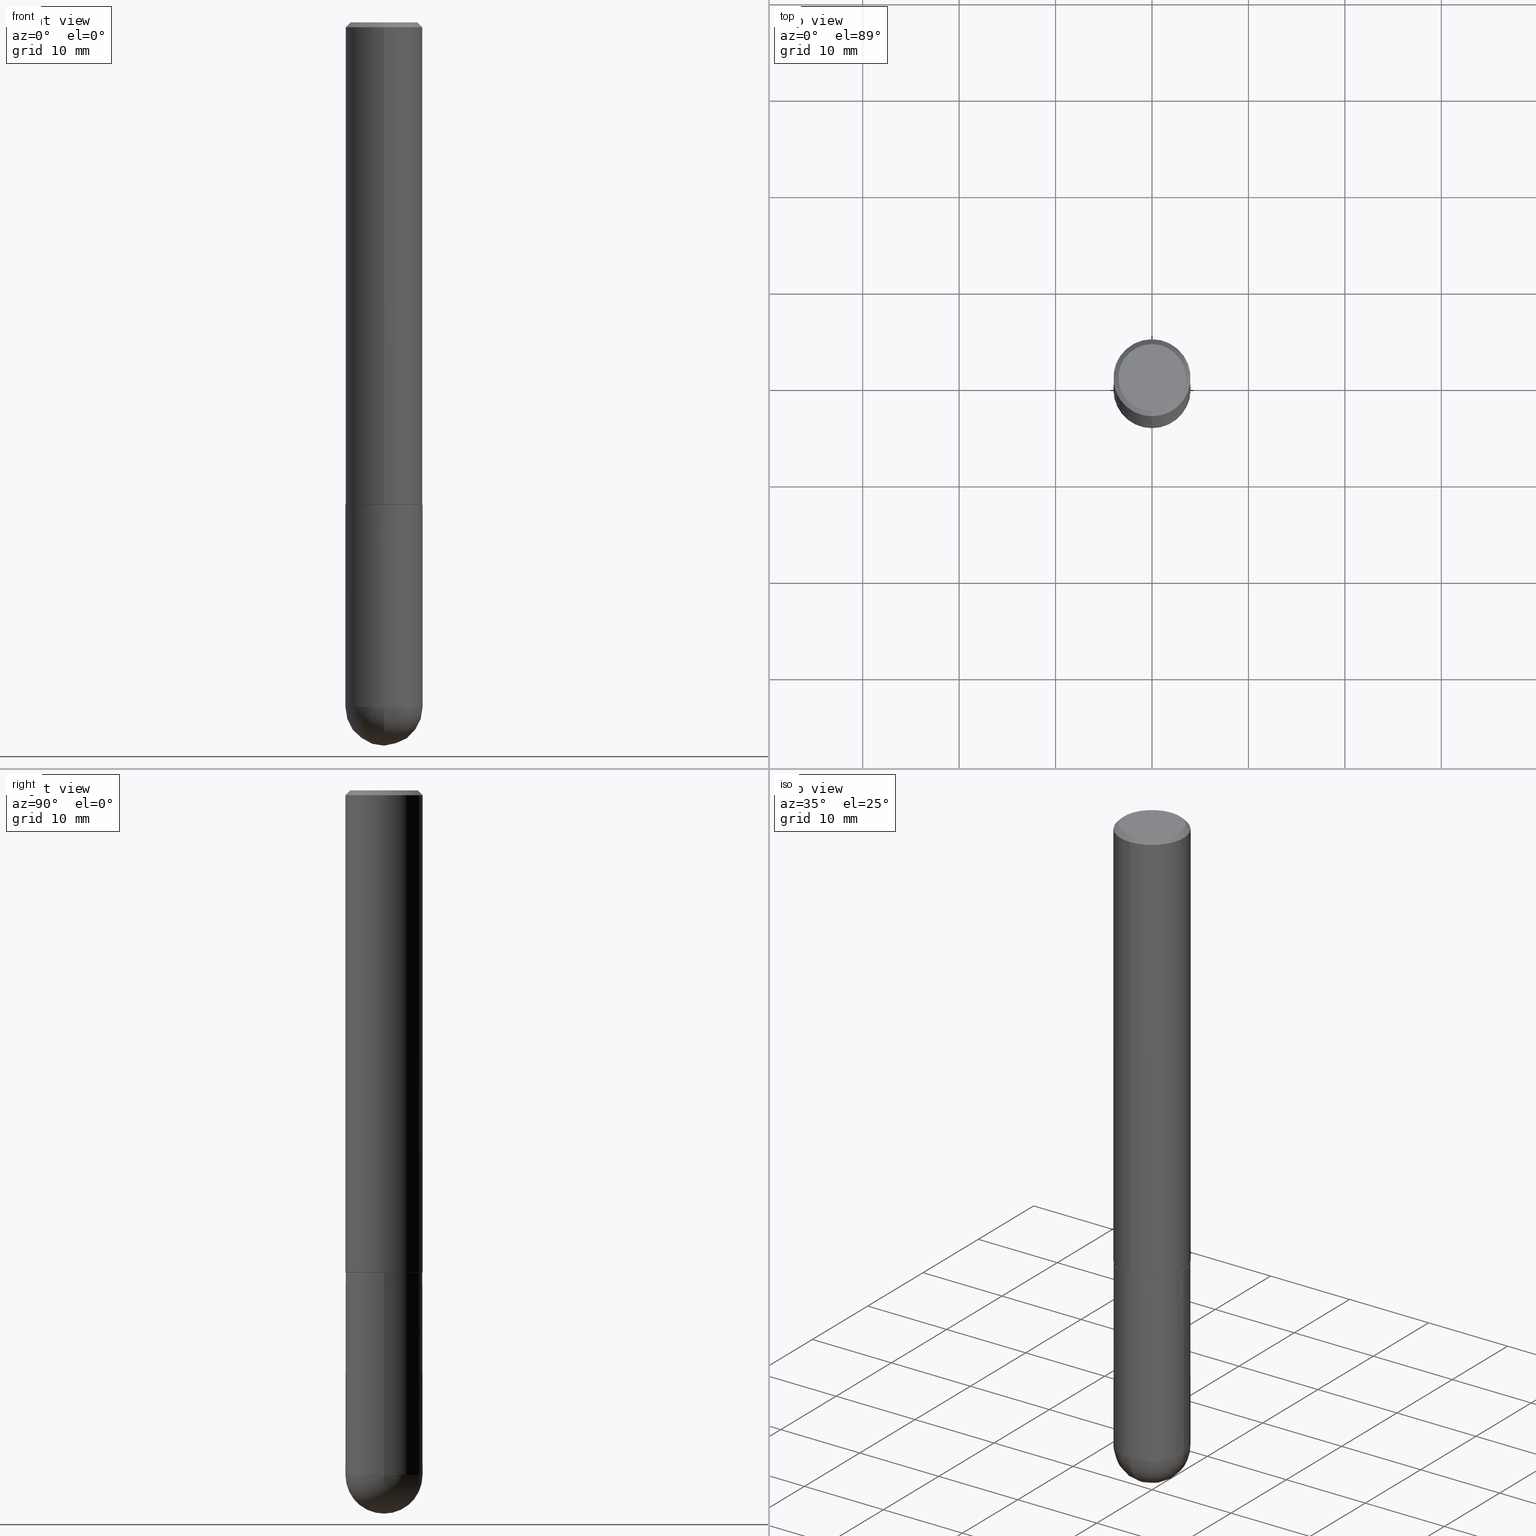
[diagram: canonical four-view strip — front | top / right | iso, engineering-drawing reading convention]
A machine part, canonical four-view strip (front | top / right | iso — engineering-drawing reading convention). The complete STEP part file that produces these views, byte-faithful:
ISO-10303-21;
HEADER;
FILE_DESCRIPTION (( 'STEP AP203' ),
    '1' );
FILE_NAME ('43316.STEP',
    '2024-04-10T11:43:01',
    ( '' ),
    ( '' ),
    'SwSTEP 2.0',
    'SolidWorks 2023',
    '' );
FILE_SCHEMA (( 'CONFIG_CONTROL_DESIGN' ));
ENDSEC;

DATA;
#1 = DIRECTION ( 'NONE',  ( 1.000000000000000000, -6.982962677686268288E-15, 0.000000000000000000 ) ) ;
#2 = EDGE_CURVE ( 'NONE', #313, #119, #248, .T. ) ;
#3 = ORIENTED_EDGE ( 'NONE', *, *, #396, .T. ) ;
#4 = CARTESIAN_POINT ( 'NONE',  ( 0.000000000000000000, 0.000000000000000000, 0.000000000000000000 ) ) ;
#5 = DIRECTION ( 'NONE',  ( -2.452606242276133797E-29, 3.481260124123203654E-15, 1.000000000000000000 ) ) ;
#6 = CC_DESIGN_SECURITY_CLASSIFICATION ( #137, ( #92 ) ) ;
#7 = APPLICATION_PROTOCOL_DEFINITION ( 'international standard', 'config_control_design', 1994, #393 ) ;
#8 = LINE ( 'NONE', #175, #260 ) ;
#9 = EDGE_CURVE ( 'NONE', #28, #375, #55, .T. ) ;
#10 = CARTESIAN_POINT ( 'NONE',  ( 6.835818953929311707E-29, -9.759737786468243605E-15, -2.795299999999999674 ) ) ;
#11 = DIRECTION ( 'NONE',  ( 1.000000000000000000, -6.982962677686265922E-15, 4.876176775795935232E-29 ) ) ;
#12 = DIRECTION ( 'NONE',  ( -6.982962677686265922E-15, -1.000000000000000000, 3.469013325287948955E-15 ) ) ;
#13 = LINE ( 'NONE', #76, #281 ) ;
#14 = CIRCLE ( 'NONE', #144, 0.1575000000000000011 ) ;
#15 =( GEOMETRIC_REPRESENTATION_CONTEXT ( 3 ) GLOBAL_UNCERTAINTY_ASSIGNED_CONTEXT ( ( #180 ) ) GLOBAL_UNIT_ASSIGNED_CONTEXT ( ( #169, #290, #166 ) ) REPRESENTATION_CONTEXT ( 'NONE', 'WORKASPACE' ) );
#16 = LINE ( 'NONE', #305, #277 ) ;
#17 = PERSON_AND_ORGANIZATION ( #366, #145 ) ;
#18 = FACE_OUTER_BOUND ( 'NONE', #303, .T. ) ;
#19 = APPROVAL_ROLE ( '' ) ;
#20 = CARTESIAN_POINT ( 'NONE',  ( 4.905212484552274391E-31, -6.962520248246417464E-17, -0.02000000000000003164 ) ) ;
#21 = DESIGN_CONTEXT ( 'detailed design', #61, 'design' ) ;
#22 = EDGE_LOOP ( 'NONE', ( #3, #409, #192, #36 ) ) ;
#23 = CIRCLE ( 'NONE', #105, 0.1575000000000000011 ) ;
#24 = EDGE_CURVE ( 'NONE', #375, #65, #220, .T. ) ;
#25 = ORIENTED_EDGE ( 'NONE', *, *, #142, .F. ) ;
#26 = COORDINATED_UNIVERSAL_TIME_OFFSET ( 5, 0, .BEHIND. ) ;
#27 = EDGE_LOOP ( 'NONE', ( #188, #242, #124, #85 ) ) ;
#28 = VERTEX_POINT ( 'NONE', #291 ) ;
#29 = VECTOR ( 'NONE', #106, 39.37007874015748143 ) ;
#30 = AXIS2_PLACEMENT_3D ( 'NONE', #4, #154, #78 ) ;
#31 = ORIENTED_EDGE ( 'NONE', *, *, #388, .F. ) ;
#32 = APPROVAL_STATUS ( 'not_yet_approved' ) ;
#33 = EDGE_CURVE ( 'NONE', #313, #125, #174, .T. ) ;
#34 = CC_DESIGN_PERSON_AND_ORGANIZATION_ASSIGNMENT ( #250, #98, ( #92 ) ) ;
#35 = AXIS2_PLACEMENT_3D ( 'NONE', #208, #45, #243 ) ;
#36 = ORIENTED_EDGE ( 'NONE', *, *, #179, .F. ) ;
#37 = FACE_OUTER_BOUND ( 'NONE', #254, .T. ) ;
#38 = CARTESIAN_POINT ( 'NONE',  ( 4.905212484552274391E-31, -6.962520248246417464E-17, -0.02000000000000003164 ) ) ;
#39 = DIRECTION ( 'NONE',  ( 2.438088387897960049E-29, -3.491481338843145188E-15, -1.000000000000000000 ) ) ;
#40 = DIRECTION ( 'NONE',  ( 5.024295867787803643E-15, 0.7071067811865135999, 0.7071067811865812125 ) ) ;
#41 = CLOSED_SHELL ( 'NONE', ( #371, #202, #62, #77, #228, #309, #349, #189 ) ) ;
#42 = DIRECTION ( 'NONE',  ( -6.982962677686267499E-15, -1.000000000000000000, 3.491179544618867914E-15 ) ) ;
#43 = FACE_OUTER_BOUND ( 'NONE', #252, .T. ) ;
#44 = DIRECTION ( 'NONE',  ( -2.452606242276134078E-29, 3.481260124123204048E-15, 1.000000000000000000 ) ) ;
#45 = DIRECTION ( 'NONE',  ( 2.452606242276133797E-29, -3.481260124123203654E-15, -1.000000000000000000 ) ) ;
#46 = CARTESIAN_POINT ( 'NONE',  ( 9.601573681818604894E-16, 0.1374999999999998723, -4.196168007175302652E-16 ) ) ;
#47 = CIRCLE ( 'NONE', #152, 0.1575000000000000011 ) ;
#48 = CARTESIAN_POINT ( 'NONE',  ( -2.896845160306655403E-45, 4.111818427476478730E-31, 1.181129326988194735E-16 ) ) ;
#49 = CARTESIAN_POINT ( 'NONE',  ( -0.1575000000000000011, 1.119104808822157801E-15, -7.747322767151475583E-30 ) ) ;
#50 = ORIENTED_EDGE ( 'NONE', *, *, #315, .T. ) ;
#51 = AXIS2_PLACEMENT_3D ( 'NONE', #79, #121, #275 ) ;
#52 = ORIENTED_EDGE ( 'NONE', *, *, #101, .T. ) ;
#53 = DIRECTION ( 'NONE',  ( 1.000000000000000000, -6.982962677686265922E-15, 4.883557194083112340E-29 ) ) ;
#54 = APPROVAL_ROLE ( '' ) ;
#55 = LINE ( 'NONE', #330, #29 ) ;
#56 = SECURITY_CLASSIFICATION_LEVEL ( 'unclassified' ) ;
#57 = EDGE_CURVE ( 'NONE', #182, #65, #8, .T. ) ;
#58 = CONICAL_SURFACE ( 'NONE', #35, 0.1574999999999999456, 0.7853981633974469467 ) ;
#59 = AXIS2_PLACEMENT_3D ( 'NONE', #104, #357, #11 ) ;
#60 = COORDINATED_UNIVERSAL_TIME_OFFSET ( 5, 0, .BEHIND. ) ;
#61 = APPLICATION_CONTEXT ( 'configuration controlled 3d designs of mechanical parts and assemblies' ) ;
#62 = ADVANCED_FACE ( 'NONE', ( #178 ), #160, .T. ) ;
#63 = CARTESIAN_POINT ( 'NONE',  ( 4.827955387920569844E-29, -6.852860554336525962E-15, -1.968500000000000139 ) ) ;
#64 = AXIS2_PLACEMENT_3D ( 'NONE', #351, #138, #1 ) ;
#65 = VERTEX_POINT ( 'NONE', #75 ) ;
#66 = CC_DESIGN_APPROVAL ( #379, ( #94 ) ) ;
#67 = FACE_OUTER_BOUND ( 'NONE', #27, .T. ) ;
#68 = DIRECTION ( 'NONE',  ( -6.982962677686267499E-15, -1.000000000000000000, 3.491179544618867914E-15 ) ) ;
#69 = DIRECTION ( 'NONE',  ( -2.445468806185136597E-29, 3.491481338843145583E-15, 1.000000000000000000 ) ) ;
#70 = DIRECTION ( 'NONE',  ( -2.452606242276133237E-29, 3.481260124123204048E-15, 1.000000000000000000 ) ) ;
#71 = PLANE ( 'NONE',  #318 ) ;
#72 = AXIS2_PLACEMENT_3D ( 'NONE', #276, #213, #249 ) ;
#73 = LOCAL_TIME ( 7, 43, 1.000000000000000000, #60 ) ;
#74 = DIRECTION ( 'NONE',  ( -2.452606242276134078E-29, 3.481260124123204048E-15, 1.000000000000000000 ) ) ;
#75 = CARTESIAN_POINT ( 'NONE',  ( 1.099816621735586889E-15, 0.1574999999999998901, -0.02000000000000057634 ) ) ;
#76 = CARTESIAN_POINT ( 'NONE',  ( 1.111999381464604519E-15, 0.1564999999999930891, -1.968500000000000583 ) ) ;
#77 = ADVANCED_FACE ( 'NONE', ( #67 ), #58, .T. ) ;
#78 = DIRECTION ( 'NONE',  ( 1.000000000000000000, 0.000000000000000000, 0.000000000000000000 ) ) ;
#79 = CARTESIAN_POINT ( 'NONE',  ( 0.000000000000000000, 0.000000000000000000, 0.000000000000000000 ) ) ;
#80 = AXIS2_PLACEMENT_3D ( 'NONE', #398, #5, #12 ) ;
#81 = CC_DESIGN_DATE_AND_TIME_ASSIGNMENT ( #255, #383, ( #94 ) ) ;
#82 = ORIENTED_EDGE ( 'NONE', *, *, #360, .T. ) ;
#83 = AXIS2_PLACEMENT_3D ( 'NONE', #328, #197, #68 ) ;
#84 = DIRECTION ( 'NONE',  ( -6.982962677686267499E-15, -1.000000000000000000, 3.491179544618867914E-15 ) ) ;
#85 = ORIENTED_EDGE ( 'NONE', *, *, #268, .T. ) ;
#86 = COORDINATED_UNIVERSAL_TIME_OFFSET ( 5, 0, .BEHIND. ) ;
#87 = CYLINDRICAL_SURFACE ( 'NONE', #72, 0.1575000000000000844 ) ;
#88 = ORIENTED_EDGE ( 'NONE', *, *, #33, .T. ) ;
#89 = VERTEX_POINT ( 'NONE', #300 ) ;
#90 = PERSON_AND_ORGANIZATION ( #366, #145 ) ;
#91 = AXIS2_PLACEMENT_3D ( 'NONE', #48, #218, #335 ) ;
#92 = PRODUCT_DEFINITION_FORMATION_WITH_SPECIFIED_SOURCE ( 'ANY', '', #103, .NOT_KNOWN. ) ;
#93 = VERTEX_POINT ( 'NONE', #329 ) ;
#94 = PRODUCT_DEFINITION ( 'UNKNOWN', '', #92, #21 ) ;
#95 = VERTEX_POINT ( 'NONE', #148 ) ;
#96 = DATE_AND_TIME ( #381, #327 ) ;
#97 = EDGE_LOOP ( 'NONE', ( #167, #258, #134, #31 ) ) ;
#98 = PERSON_AND_ORGANIZATION_ROLE ( 'design_supplier' ) ;
#99 = MANIFOLD_SOLID_BREP ( 'Body-Move/Copy2[2]', #41 ) ;
#100 = VECTOR ( 'NONE', #74, 39.37007874015748143 ) ;
#101 = EDGE_CURVE ( 'NONE', #182, #89, #359, .T. ) ;
#102 = LINE ( 'NONE', #299, #282 ) ;
#103 = PRODUCT ( '43316', '43316', '', ( #216 ) ) ;
#104 = CARTESIAN_POINT ( 'NONE',  ( 0.000000000000000000, 0.000000000000000000, 0.000000000000000000 ) ) ;
#105 = AXIS2_PLACEMENT_3D ( 'NONE', #151, #403, #150 ) ;
#106 = DIRECTION ( 'NONE',  ( -4.851104656540957175E-15, -0.7071067811865490160, -0.7071067811865460184 ) ) ;
#107 = APPROVAL_PERSON_ORGANIZATION ( #307, #379, #19 ) ;
#108 = FACE_OUTER_BOUND ( 'NONE', #22, .T. ) ;
#109 = DIRECTION ( 'NONE',  ( -4.937700262164294818E-15, -0.7071067811865088260, 0.7071067811865862085 ) ) ;
#110 = DIRECTION ( 'NONE',  ( -2.452606242276133797E-29, 3.481260124123203654E-15, 1.000000000000000000 ) ) ;
#111 = DIRECTION ( 'NONE',  ( -2.452606242276133797E-29, 3.481260124123203654E-15, 1.000000000000000000 ) ) ;
#112 = CYLINDRICAL_SURFACE ( 'NONE', #126, 0.1575000000000000844 ) ;
#113 = CIRCLE ( 'NONE', #165, 0.1564999999999999447 ) ;
#114 = EDGE_CURVE ( 'NONE', #89, #182, #368, .T. ) ;
#115 = DIRECTION ( 'NONE',  ( -1.000000000000000000, 7.105427357601001070E-15, -4.926315508542082329E-29 ) ) ;
#116 = APPROVAL_STATUS ( 'not_yet_approved' ) ;
#117 = DIRECTION ( 'NONE',  ( -2.452606242276133797E-29, 3.481260124123203654E-15, 1.000000000000000000 ) ) ;
#118 = CYLINDRICAL_SURFACE ( 'NONE', #51, 0.1575000000000000011 ) ;
#119 = VERTEX_POINT ( 'NONE', #201 ) ;
#120 = DIRECTION ( 'NONE',  ( -2.445468806185136597E-29, 3.491481338843145583E-15, 1.000000000000000000 ) ) ;
#121 = DIRECTION ( 'NONE',  ( -2.445468806185136597E-29, 3.491481338843145583E-15, 1.000000000000000000 ) ) ;
#122 = CC_DESIGN_PERSON_AND_ORGANIZATION_ASSIGNMENT ( #404, #347, ( #92 ) ) ;
#123 = DATE_TIME_ROLE ( 'classification_date' ) ;
#124 = ORIENTED_EDGE ( 'NONE', *, *, #376, .T. ) ;
#125 = VERTEX_POINT ( 'NONE', #200 ) ;
#126 = AXIS2_PLACEMENT_3D ( 'NONE', #395, #111, #358 ) ;
#127 = ADVANCED_FACE ( 'NONE', ( #301 ), #136, .T. ) ;
#128 = ORIENTED_EDGE ( 'NONE', *, *, #302, .F. ) ;
#129 = ORIENTED_EDGE ( 'NONE', *, *, #199, .F. ) ;
#130 = CIRCLE ( 'NONE', #187, 0.1574999999999999456 ) ;
#131 = CONICAL_SURFACE ( 'NONE', #215, 0.1564999999999999447, 0.7853981633973970977 ) ;
#132 = LINE ( 'NONE', #319, #100 ) ;
#133 = CARTESIAN_POINT ( 'NONE',  ( 4.813905344975440714E-29, -6.872981015512730918E-15, -1.968499999999999694 ) ) ;
#134 = ORIENTED_EDGE ( 'NONE', *, *, #24, .F. ) ;
#135 = CARTESIAN_POINT ( 'NONE',  ( -2.896845160306655403E-45, 4.111818427476478730E-31, 1.181129326988194735E-16 ) ) ;
#136 = SPHERICAL_SURFACE ( 'NONE', #292, 0.1575000000000003064 ) ;
#137 = SECURITY_CLASSIFICATION ( '', '', #56 ) ;
#138 = DIRECTION ( 'NONE',  ( -2.445468806185136597E-29, 3.491481338843145583E-15, 1.000000000000000000 ) ) ;
#139 = CARTESIAN_POINT ( 'NONE',  ( 4.905212484552274391E-31, -6.962520248246417464E-17, -0.02000000000000003164 ) ) ;
#140 = DIRECTION ( 'NONE',  ( -2.445468806185136597E-29, 3.491481338843145583E-15, 1.000000000000000000 ) ) ;
#141 = PLANE ( 'NONE',  #390 ) ;
#142 = EDGE_CURVE ( 'NONE', #95, #182, #13, .T. ) ;
#143 = DIRECTION ( 'NONE',  ( -1.000000000000000000, 6.982962677686265922E-15, -4.883557194083112901E-29 ) ) ;
#144 = AXIS2_PLACEMENT_3D ( 'NONE', #10, #140, #269 ) ;
#145 = ORGANIZATION ( 'UNSPECIFIED', 'UNSPECIFIED', '' ) ;
#146 = APPROVAL_PERSON_ORGANIZATION ( #374, #209, #54 ) ;
#147 = PERSON_AND_ORGANIZATION ( #366, #145 ) ;
#148 = CARTESIAN_POINT ( 'NONE',  ( 1.115552095143405811E-15, 0.1564999999999930891, -1.968500000000000583 ) ) ;
#149 = PERSON_AND_ORGANIZATION_ROLE ( 'creator' ) ;
#150 = DIRECTION ( 'NONE',  ( 1.000000000000000000, -6.982962677686261977E-15, 0.000000000000000000 ) ) ;
#151 = CARTESIAN_POINT ( 'NONE',  ( 6.835818953929311707E-29, -9.759737786468243605E-15, -2.795299999999999674 ) ) ;
#152 = AXIS2_PLACEMENT_3D ( 'NONE', #356, #69, #271 ) ;
#153 = ORIENTED_EDGE ( 'NONE', *, *, #324, .T. ) ;
#154 = DIRECTION ( 'NONE',  ( 0.000000000000000000, 0.000000000000000000, 1.000000000000000000 ) ) ;
#155 = EDGE_LOOP ( 'NONE', ( #246, #88, #129, #367 ) ) ;
#156 = APPROVAL_ROLE ( '' ) ;
#157 = EDGE_LOOP ( 'NONE', ( #340, #382 ) ) ;
#158 = EDGE_LOOP ( 'NONE', ( #331, #342, #280, #285, #289 ) ) ;
#159 = APPROVAL_STATUS ( 'not_yet_approved' ) ;
#160 = CONICAL_SURFACE ( 'NONE', #408, 0.1574999999999999456, 0.7853981633974469467 ) ;
#161 = EDGE_LOOP ( 'NONE', ( #312, #380, #221, #346, #50 ) ) ;
#162 = PERSON_AND_ORGANIZATION_ROLE ( 'classification_officer' ) ;
#163 = EDGE_CURVE ( 'NONE', #93, #320, #171, .T. ) ;
#164 = PRODUCT_RELATED_PRODUCT_CATEGORY ( 'detail', '', ( #103 ) ) ;
#165 = AXIS2_PLACEMENT_3D ( 'NONE', #310, #370, #84 ) ;
#166 =( NAMED_UNIT ( * ) SI_UNIT ( $, .STERADIAN. ) SOLID_ANGLE_UNIT ( ) );
#167 = ORIENTED_EDGE ( 'NONE', *, *, #114, .T. ) ;
#168 = CC_DESIGN_PERSON_AND_ORGANIZATION_ASSIGNMENT ( #147, #399, ( #103 ) ) ;
#169 =( CONVERSION_BASED_UNIT ( 'INCH', #387 ) LENGTH_UNIT ( ) NAMED_UNIT ( #321 ) );
#170 = PRODUCT_DEFINITION_SHAPE ( 'NONE', 'NONE',  #94 ) ;
#171 = LINE ( 'NONE', #211, #326 ) ;
#172 = CARTESIAN_POINT ( 'NONE',  ( 4.827955387920569844E-29, -6.852860554336525962E-15, -1.968500000000000139 ) ) ;
#173 = CARTESIAN_POINT ( 'NONE',  ( 4.827955387920569844E-29, -6.852860554336525962E-15, -1.968500000000000139 ) ) ;
#174 = CIRCLE ( 'NONE', #194, 0.1575000000000003064 ) ;
#175 = CARTESIAN_POINT ( 'NONE',  ( 1.119104808822158195E-15, 0.1575000000000000844, -5.482984695494049531E-16 ) ) ;
#176 = CARTESIAN_POINT ( 'NONE',  ( -1.092833659057852162E-15, -0.1565000000000068281, -1.968499999999999472 ) ) ;
#177 = DIRECTION ( 'NONE',  ( -2.445468806185136597E-29, 3.491481338843145583E-15, 1.000000000000000000 ) ) ;
#178 = FACE_OUTER_BOUND ( 'NONE', #316, .T. ) ;
#179 = EDGE_CURVE ( 'NONE', #314, #89, #16, .T. ) ;
#180 = UNCERTAINTY_MEASURE_WITH_UNIT (LENGTH_MEASURE( 1.000000000000000082E-05 ), #169, 'distance_accuracy_value', 'NONE');
#181 = CARTESIAN_POINT ( 'NONE',  ( 4.825502781678292621E-29, -6.849379294212400691E-15, -1.967499999999999805 ) ) ;
#182 = VERTEX_POINT ( 'NONE', #265 ) ;
#183 = DIRECTION ( 'NONE',  ( 2.452606242276133237E-29, -3.481260124123204048E-15, -1.000000000000000000 ) ) ;
#184 = LOCAL_TIME ( 7, 43, 1.000000000000000000, #86 ) ;
#185 = DIRECTION ( 'NONE',  ( -2.452606242276133797E-29, 3.481260124123203654E-15, 1.000000000000000000 ) ) ;
#186 = FACE_OUTER_BOUND ( 'NONE', #158, .T. ) ;
#187 = AXIS2_PLACEMENT_3D ( 'NONE', #20, #185, #217 ) ;
#188 = ORIENTED_EDGE ( 'NONE', *, *, #9, .F. ) ;
#189 = ADVANCED_FACE ( 'NONE', ( #392 ), #71, .F. ) ;
#190 = ORIENTED_EDGE ( 'NONE', *, *, #101, .F. ) ;
#191 = DIRECTION ( 'NONE',  ( 6.982962677686265133E-15, 1.000000000000000000, 0.000000000000000000 ) ) ;
#192 = ORIENTED_EDGE ( 'NONE', *, *, #114, .F. ) ;
#193 = CALENDAR_DATE ( 2024, 10, 4 ) ;
#194 = AXIS2_PLACEMENT_3D ( 'NONE', #231, #115, #364 ) ;
#195 = CIRCLE ( 'NONE', #83, 0.1564999999999999447 ) ;
#196 = AXIS2_PLACEMENT_3D ( 'NONE', #172, #117, #42 ) ;
#197 = DIRECTION ( 'NONE',  ( -2.452606242276133797E-29, 3.481260124123203654E-15, 1.000000000000000000 ) ) ;
#198 = ORIENTED_EDGE ( 'NONE', *, *, #33, .F. ) ;
#199 = EDGE_CURVE ( 'NONE', #363, #125, #47, .T. ) ;
#200 = CARTESIAN_POINT ( 'NONE',  ( -1.119104808822091931E-15, -0.1575000000000101319, -2.795299999999998786 ) ) ;
#201 = CARTESIAN_POINT ( 'NONE',  ( 1.099816621735654731E-15, 0.1574999999999901201, -2.795300000000000118 ) ) ;
#202 = ADVANCED_FACE ( 'NONE', ( #397 ), #112, .T. ) ;
#203 = DIRECTION ( 'NONE',  ( -6.982962677686267499E-15, -1.000000000000000000, 3.491179544618867914E-15 ) ) ;
#204 = AXIS2_PLACEMENT_3D ( 'NONE', #373, #339, #245 ) ;
#205 = CARTESIAN_POINT ( 'NONE',  ( 1.029986994958723788E-15, 0.1374999999999998723, -3.605603343681205655E-16 ) ) ;
#206 = CC_DESIGN_APPROVAL ( #209, ( #137 ) ) ;
#207 = APPROVAL ( #32, 'UNSPECIFIED' ) ;
#208 = CARTESIAN_POINT ( 'NONE',  ( 4.905212484552274391E-31, -6.962520248246417464E-17, -0.02000000000000003164 ) ) ;
#209 = APPROVAL ( #159, 'UNSPECIFIED' ) ;
#210 = ORIENTED_EDGE ( 'NONE', *, *, #302, .T. ) ;
#211 = CARTESIAN_POINT ( 'NONE',  ( 0.1575000000000000011, -1.099816621735586889E-15, 7.679978421878598033E-30 ) ) ;
#212 = DATE_AND_TIME ( #365, #184 ) ;
#213 = DIRECTION ( 'NONE',  ( -2.452606242276133797E-29, 3.481260124123203654E-15, 1.000000000000000000 ) ) ;
#214 = AXIS2_PLACEMENT_3D ( 'NONE', #344, #53, #191 ) ;
#215 = AXIS2_PLACEMENT_3D ( 'NONE', #173, #264, #203 ) ;
#216 = MECHANICAL_CONTEXT ( 'NONE', #393, 'mechanical' ) ;
#217 = DIRECTION ( 'NONE',  ( -6.982962677686265922E-15, -1.000000000000000000, 3.469013325287954477E-15 ) ) ;
#218 = DIRECTION ( 'NONE',  ( -2.452606242276133797E-29, 3.481260124123203654E-15, 1.000000000000000000 ) ) ;
#219 = VERTEX_POINT ( 'NONE', #205 ) ;
#220 = CIRCLE ( 'NONE', #230, 0.1574999999999999456 ) ;
#221 = ORIENTED_EDGE ( 'NONE', *, *, #360, .F. ) ;
#222 = APPROVAL_DATE_TIME ( #286, #209 ) ;
#223 = ORIENTED_EDGE ( 'NONE', *, *, #315, .F. ) ;
#224 = VERTEX_POINT ( 'NONE', #240 ) ;
#225 = PERSON_AND_ORGANIZATION ( #366, #145 ) ;
#226 = ORIENTED_EDGE ( 'NONE', *, *, #261, .F. ) ;
#227 = SHAPE_DEFINITION_REPRESENTATION ( #170, #298 ) ;
#228 = ADVANCED_FACE ( 'NONE', ( #362 ), #87, .T. ) ;
#229 = EDGE_CURVE ( 'NONE', #363, #224, #273, .T. ) ;
#230 = AXIS2_PLACEMENT_3D ( 'NONE', #139, #296, #389 ) ;
#231 = CARTESIAN_POINT ( 'NONE',  ( 6.504699176015425459E-29, -1.023392015460829390E-14, -2.795299999999999674 ) ) ;
#232 = CARTESIAN_POINT ( 'NONE',  ( -0.1575000000000000011, -7.197254592168330052E-15, -2.795299999999999674 ) ) ;
#233 = DIRECTION ( 'NONE',  ( 6.982962677686265922E-15, 1.000000000000000000, -3.481260124123204048E-15 ) ) ;
#234 = ADVANCED_FACE ( 'NONE', ( #18 ), #308, .T. ) ;
#235 = FACE_OUTER_BOUND ( 'NONE', #161, .T. ) ;
#236 = DIRECTION ( 'NONE',  ( 6.982962677686265922E-15, 1.000000000000000000, -3.469013325287954477E-15 ) ) ;
#237 = CC_DESIGN_PERSON_AND_ORGANIZATION_ASSIGNMENT ( #17, #149, ( #94 ) ) ;
#238 = DIRECTION ( 'NONE',  ( -6.982962677686265922E-15, -1.000000000000000000, 3.481260124123204048E-15 ) ) ;
#239 = AXIS2_PLACEMENT_3D ( 'NONE', #181, #272, #325 ) ;
#240 = CARTESIAN_POINT ( 'NONE',  ( -0.1575000000000000011, -7.197254592168330052E-15, -1.968499999999999694 ) ) ;
#241 = AXIS2_PLACEMENT_3D ( 'NONE', #63, #70, #238 ) ;
#242 = ORIENTED_EDGE ( 'NONE', *, *, #338, .F. ) ;
#243 = DIRECTION ( 'NONE',  ( 6.982962677686265922E-15, 1.000000000000000000, -3.469013325287954477E-15 ) ) ;
#244 = ORIENTED_EDGE ( 'NONE', *, *, #388, .T. ) ;
#245 = DIRECTION ( 'NONE',  ( 6.982962677686265922E-15, 1.000000000000000000, -3.469013325287946588E-15 ) ) ;
#246 = ORIENTED_EDGE ( 'NONE', *, *, #2, .F. ) ;
#247 = DIRECTION ( 'NONE',  ( 1.000000000000000000, -6.982962677686261977E-15, 0.000000000000000000 ) ) ;
#248 = CIRCLE ( 'NONE', #214, 0.1575000000000003064 ) ;
#249 = DIRECTION ( 'NONE',  ( -6.982962677686265922E-15, -1.000000000000000000, 3.481260124123204048E-15 ) ) ;
#250 = PERSON_AND_ORGANIZATION ( #366, #145 ) ;
#251 = MANIFOLD_SOLID_BREP ( 'Body-Move/Copy2[1]', #348 ) ;
#252 = EDGE_LOOP ( 'NONE', ( #82, #153 ) ) ;
#253 = CIRCLE ( 'NONE', #64, 0.1575000000000000011 ) ;
#254 = EDGE_LOOP ( 'NONE', ( #405, #128 ) ) ;
#255 = DATE_AND_TIME ( #345, #293 ) ;
#256 = ORIENTED_EDGE ( 'NONE', *, *, #57, .F. ) ;
#257 = EDGE_CURVE ( 'NONE', #119, #363, #23, .T. ) ;
#258 = ORIENTED_EDGE ( 'NONE', *, *, #57, .T. ) ;
#259 = COORDINATED_UNIVERSAL_TIME_OFFSET ( 5, 0, .BEHIND. ) ;
#260 = VECTOR ( 'NONE', #44, 39.37007874015748143 ) ;
#261 = EDGE_CURVE ( 'NONE', #28, #219, #311, .T. ) ;
#262 = PLANE ( 'NONE',  #241 ) ;
#263 = ORIENTED_EDGE ( 'NONE', *, *, #179, .T. ) ;
#264 = DIRECTION ( 'NONE',  ( -2.452606242276133797E-29, 3.481260124123203654E-15, 1.000000000000000000 ) ) ;
#265 = CARTESIAN_POINT ( 'NONE',  ( 1.119104808822183241E-15, 0.1574999999999933398, -1.967500000000000249 ) ) ;
#266 =( LENGTH_UNIT ( ) NAMED_UNIT ( * ) SI_UNIT ( $, .METRE. ) );
#267 = DIRECTION ( 'NONE',  ( 6.982962677686265922E-15, 1.000000000000000000, -3.469013325287946588E-15 ) ) ;
#268 = EDGE_CURVE ( 'NONE', #65, #375, #130, .T. ) ;
#269 = DIRECTION ( 'NONE',  ( 1.000000000000000000, -6.982962677686261977E-15, 0.000000000000000000 ) ) ;
#270 = DIRECTION ( 'NONE',  ( -1.000000000000000000, 6.982962677686265922E-15, -4.876176775795935793E-29 ) ) ;
#271 = DIRECTION ( 'NONE',  ( 1.000000000000000000, -6.982962677686261977E-15, 0.000000000000000000 ) ) ;
#272 = DIRECTION ( 'NONE',  ( -2.452606242276133797E-29, 3.481260124123203654E-15, 1.000000000000000000 ) ) ;
#273 = LINE ( 'NONE', #49, #384 ) ;
#274 = COORDINATED_UNIVERSAL_TIME_OFFSET ( 5, 0, .BEHIND. ) ;
#275 = DIRECTION ( 'NONE',  ( 1.000000000000000000, -6.982962677686265922E-15, 4.876176775795935232E-29 ) ) ;
#276 = CARTESIAN_POINT ( 'NONE',  ( 0.000000000000000000, 0.000000000000000000, 0.000000000000000000 ) ) ;
#277 = VECTOR ( 'NONE', #109, 39.37007874015748143 ) ;
#278 = CIRCLE ( 'NONE', #341, 0.1575000000000000011 ) ;
#279 = ORIENTED_EDGE ( 'NONE', *, *, #295, .F. ) ;
#280 = ORIENTED_EDGE ( 'NONE', *, *, #295, .T. ) ;
#281 = VECTOR ( 'NONE', #40, 39.37007874015748854 ) ;
#282 = VECTOR ( 'NONE', #294, 39.37007874015748143 ) ;
#283 = ORIENTED_EDGE ( 'NONE', *, *, #268, .F. ) ;
#284 = ADVANCED_FACE ( 'NONE', ( #186 ), #118, .T. ) ;
#285 = ORIENTED_EDGE ( 'NONE', *, *, #163, .T. ) ;
#286 = DATE_AND_TIME ( #406, #369 ) ;
#287 = AXIS2_PLACEMENT_3D ( 'NONE', #401, #120, #247 ) ;
#288 = DIRECTION ( 'NONE',  ( 1.000000000000000000, -6.982962677686268288E-15, 0.000000000000000000 ) ) ;
#289 = ORIENTED_EDGE ( 'NONE', *, *, #324, .F. ) ;
#290 =( NAMED_UNIT ( * ) PLANE_ANGLE_UNIT ( ) SI_UNIT ( $, .RADIAN. ) );
#291 = CARTESIAN_POINT ( 'NONE',  ( -1.011923454671300053E-15, -0.1374999999999998723, 5.967861997657594631E-16 ) ) ;
#292 = AXIS2_PLACEMENT_3D ( 'NONE', #323, #143, #267 ) ;
#293 = LOCAL_TIME ( 7, 43, 1.000000000000000000, #274 ) ;
#294 = DIRECTION ( 'NONE',  ( 4.937700262164540942E-15, 0.7071067811865441310, -0.7071067811865509034 ) ) ;
#295 = EDGE_CURVE ( 'NONE', #125, #93, #412, .T. ) ;
#296 = DIRECTION ( 'NONE',  ( -2.452606242276133797E-29, 3.481260124123203654E-15, 1.000000000000000000 ) ) ;
#297 = CARTESIAN_POINT ( 'NONE',  ( 6.896594947516873652E-29, -1.077418437193280573E-14, -2.952799999999999869 ) ) ;
#298 = ADVANCED_BREP_SHAPE_REPRESENTATION ( '43316', ( #251, #99, #30 ), #15 ) ;
#299 = CARTESIAN_POINT ( 'NONE',  ( 1.099816621735586889E-15, 0.1574999999999998901, -0.02000000000000057634 ) ) ;
#300 = CARTESIAN_POINT ( 'NONE',  ( -1.099816621735539951E-15, -0.1575000000000070510, -1.967499999999999138 ) ) ;
#301 = FACE_OUTER_BOUND ( 'NONE', #155, .T. ) ;
#302 = EDGE_CURVE ( 'NONE', #95, #314, #113, .T. ) ;
#303 = EDGE_LOOP ( 'NONE', ( #198, #410, #223, #279 ) ) ;
#304 = CIRCLE ( 'NONE', #353, 0.1374999999999998723 ) ;
#305 = CARTESIAN_POINT ( 'NONE',  ( -1.092833659057852162E-15, -0.1565000000000068281, -1.968499999999999472 ) ) ;
#306 = ORIENTED_EDGE ( 'NONE', *, *, #9, .T. ) ;
#307 = PERSON_AND_ORGANIZATION ( #366, #145 ) ;
#308 = SPHERICAL_SURFACE ( 'NONE', #204, 0.1575000000000003064 ) ;
#309 = ADVANCED_FACE ( 'NONE', ( #337 ), #377, .T. ) ;
#310 = CARTESIAN_POINT ( 'NONE',  ( 4.827955387920569844E-29, -6.852860554336525962E-15, -1.968500000000000139 ) ) ;
#311 = CIRCLE ( 'NONE', #91, 0.1374999999999998723 ) ;
#312 = ORIENTED_EDGE ( 'NONE', *, *, #257, .T. ) ;
#313 = VERTEX_POINT ( 'NONE', #297 ) ;
#314 = VERTEX_POINT ( 'NONE', #176 ) ;
#315 = EDGE_CURVE ( 'NONE', #93, #119, #14, .T. ) ;
#316 = EDGE_LOOP ( 'NONE', ( #226, #306, #407, #378 ) ) ;
#317 = DATE_AND_TIME ( #193, #73 ) ;
#318 = AXIS2_PLACEMENT_3D ( 'NONE', #46, #183, #233 ) ;
#319 = CARTESIAN_POINT ( 'NONE',  ( -1.099816621735587480E-15, -0.1575000000000000844, 5.482984695494049531E-16 ) ) ;
#320 = VERTEX_POINT ( 'NONE', #322 ) ;
#321 = DIMENSIONAL_EXPONENTS ( 1.000000000000000000, 0.000000000000000000, 0.000000000000000000, 0.000000000000000000, 0.000000000000000000, 0.000000000000000000, 0.000000000000000000 ) ;
#322 = CARTESIAN_POINT ( 'NONE',  ( 0.1575000000000000011, -7.972797637248318399E-15, -1.968499999999999694 ) ) ;
#323 = CARTESIAN_POINT ( 'NONE',  ( 6.504699176015425459E-29, -1.023392015460829390E-14, -2.795299999999999674 ) ) ;
#324 = EDGE_CURVE ( 'NONE', #224, #320, #253, .T. ) ;
#325 = DIRECTION ( 'NONE',  ( -6.982962677686265922E-15, -1.000000000000000000, 3.469013325287948955E-15 ) ) ;
#326 = VECTOR ( 'NONE', #332, 39.37007874015748143 ) ;
#327 = LOCAL_TIME ( 7, 43, 1.000000000000000000, #259 ) ;
#328 = CARTESIAN_POINT ( 'NONE',  ( 4.827955387920569844E-29, -6.852860554336525962E-15, -1.968500000000000139 ) ) ;
#329 = CARTESIAN_POINT ( 'NONE',  ( 0.1575000000000000011, -9.416176022726072770E-15, -2.795299999999999674 ) ) ;
#330 = CARTESIAN_POINT ( 'NONE',  ( -1.080528434649015385E-15, -0.1575000000000000289, -0.01999999999999948347 ) ) ;
#331 = ORIENTED_EDGE ( 'NONE', *, *, #229, .F. ) ;
#332 = DIRECTION ( 'NONE',  ( -2.445468806185136877E-29, 3.491481338843145188E-15, 1.000000000000000000 ) ) ;
#333 = APPROVAL_DATE_TIME ( #212, #379 ) ;
#334 = CC_DESIGN_APPROVAL ( #207, ( #92 ) ) ;
#335 = DIRECTION ( 'NONE',  ( -6.982962677686264344E-15, -1.000000000000000000, 3.481260124123203654E-15 ) ) ;
#336 = APPLICATION_PROTOCOL_DEFINITION ( 'international standard', 'config_control_design', 1994, #61 ) ;
#337 = FACE_OUTER_BOUND ( 'NONE', #352, .T. ) ;
#338 = EDGE_CURVE ( 'NONE', #219, #28, #304, .T. ) ;
#339 = DIRECTION ( 'NONE',  ( -1.000000000000000000, 6.982962677686265922E-15, -4.883557194083112901E-29 ) ) ;
#340 = ORIENTED_EDGE ( 'NONE', *, *, #338, .T. ) ;
#341 = AXIS2_PLACEMENT_3D ( 'NONE', #133, #177, #288 ) ;
#342 = ORIENTED_EDGE ( 'NONE', *, *, #199, .T. ) ;
#343 = ADVANCED_FACE ( 'NONE', ( #235 ), #361, .T. ) ;
#344 = CARTESIAN_POINT ( 'NONE',  ( 6.504699176015425459E-29, -1.023392015460829390E-14, -2.795299999999999674 ) ) ;
#345 = CALENDAR_DATE ( 2024, 10, 4 ) ;
#346 = ORIENTED_EDGE ( 'NONE', *, *, #163, .F. ) ;
#347 = PERSON_AND_ORGANIZATION_ROLE ( 'creator' ) ;
#348 = CLOSED_SHELL ( 'NONE', ( #343, #127, #234, #402, #284 ) ) ;
#349 = ADVANCED_FACE ( 'NONE', ( #37 ), #262, .F. ) ;
#350 = CC_DESIGN_PERSON_AND_ORGANIZATION_ASSIGNMENT ( #90, #162, ( #137 ) ) ;
#351 = CARTESIAN_POINT ( 'NONE',  ( 4.813905344975440714E-29, -6.872981015512730918E-15, -1.968499999999999694 ) ) ;
#352 = EDGE_LOOP ( 'NONE', ( #25, #210, #263, #190 ) ) ;
#353 = AXIS2_PLACEMENT_3D ( 'NONE', #135, #110, #394 ) ;
#354 = DIRECTION ( 'NONE',  ( 2.452606242276133797E-29, -3.481260124123203654E-15, -1.000000000000000000 ) ) ;
#355 = CARTESIAN_POINT ( 'NONE',  ( -1.080528434649015385E-15, -0.1575000000000000289, -0.01999999999999948347 ) ) ;
#356 = CARTESIAN_POINT ( 'NONE',  ( 6.835818953929311707E-29, -9.759737786468243605E-15, -2.795299999999999674 ) ) ;
#357 = DIRECTION ( 'NONE',  ( -2.445468806185136597E-29, 3.491481338843145583E-15, 1.000000000000000000 ) ) ;
#358 = DIRECTION ( 'NONE',  ( -6.982962677686265922E-15, -1.000000000000000000, 3.481260124123204048E-15 ) ) ;
#359 = CIRCLE ( 'NONE', #239, 0.1575000000000001954 ) ;
#360 = EDGE_CURVE ( 'NONE', #320, #224, #278, .T. ) ;
#361 = CYLINDRICAL_SURFACE ( 'NONE', #59, 0.1575000000000000011 ) ;
#362 = FACE_OUTER_BOUND ( 'NONE', #372, .T. ) ;
#363 = VERTEX_POINT ( 'NONE', #232 ) ;
#364 = DIRECTION ( 'NONE',  ( -7.105427357601000281E-15, -1.000000000000000000, 0.000000000000000000 ) ) ;
#365 = CALENDAR_DATE ( 2024, 10, 4 ) ;
#366 = PERSON ( 'UNSPECIFIED', 'UNSPECIFIED', 'UNSPECIFIED', ('UNSPECIFIED'), ('UNSPECIFIED'), ('UNSPECIFIED') ) ;
#367 = ORIENTED_EDGE ( 'NONE', *, *, #257, .F. ) ;
#368 = CIRCLE ( 'NONE', #80, 0.1575000000000001954 ) ;
#369 = LOCAL_TIME ( 7, 43, 1.000000000000000000, #26 ) ;
#370 = DIRECTION ( 'NONE',  ( -2.452606242276133797E-29, 3.481260124123203654E-15, 1.000000000000000000 ) ) ;
#371 = ADVANCED_FACE ( 'NONE', ( #108 ), #131, .T. ) ;
#372 = EDGE_LOOP ( 'NONE', ( #256, #52, #244, #283 ) ) ;
#373 = CARTESIAN_POINT ( 'NONE',  ( 6.504699176015425459E-29, -1.023392015460829390E-14, -2.795299999999999674 ) ) ;
#374 = PERSON_AND_ORGANIZATION ( #366, #145 ) ;
#375 = VERTEX_POINT ( 'NONE', #355 ) ;
#376 = EDGE_CURVE ( 'NONE', #219, #65, #102, .T. ) ;
#377 = CONICAL_SURFACE ( 'NONE', #196, 0.1564999999999999447, 0.7853981633973970977 ) ;
#378 = ORIENTED_EDGE ( 'NONE', *, *, #376, .F. ) ;
#379 = APPROVAL ( #116, 'UNSPECIFIED' ) ;
#380 = ORIENTED_EDGE ( 'NONE', *, *, #229, .T. ) ;
#381 = CALENDAR_DATE ( 2024, 10, 4 ) ;
#382 = ORIENTED_EDGE ( 'NONE', *, *, #261, .T. ) ;
#383 = DATE_TIME_ROLE ( 'creation_date' ) ;
#384 = VECTOR ( 'NONE', #400, 39.37007874015748143 ) ;
#385 = APPROVAL_PERSON_ORGANIZATION ( #225, #207, #156 ) ;
#386 = CC_DESIGN_DATE_AND_TIME_ASSIGNMENT ( #317, #123, ( #137 ) ) ;
#387 = LENGTH_MEASURE_WITH_UNIT ( LENGTH_MEASURE( 0.02539999999999999897 ), #266 );
#388 = EDGE_CURVE ( 'NONE', #89, #375, #132, .T. ) ;
#389 = DIRECTION ( 'NONE',  ( -6.982962677686265922E-15, -1.000000000000000000, 3.469013325287954477E-15 ) ) ;
#390 = AXIS2_PLACEMENT_3D ( 'NONE', #391, #39, #270 ) ;
#391 = CARTESIAN_POINT ( 'NONE',  ( 1.099816621735634812E-15, 0.1574999999999931177, -1.968500000000000361 ) ) ;
#392 = FACE_OUTER_BOUND ( 'NONE', #157, .T. ) ;
#393 = APPLICATION_CONTEXT ( 'configuration controlled 3d designs of mechanical parts and assemblies' ) ;
#394 = DIRECTION ( 'NONE',  ( -6.982962677686264344E-15, -1.000000000000000000, 3.481260124123203654E-15 ) ) ;
#395 = CARTESIAN_POINT ( 'NONE',  ( 0.000000000000000000, 0.000000000000000000, 0.000000000000000000 ) ) ;
#396 = EDGE_CURVE ( 'NONE', #314, #95, #195, .T. ) ;
#397 = FACE_OUTER_BOUND ( 'NONE', #97, .T. ) ;
#398 = CARTESIAN_POINT ( 'NONE',  ( 4.825502781678292621E-29, -6.849379294212400691E-15, -1.967499999999999805 ) ) ;
#399 = PERSON_AND_ORGANIZATION_ROLE ( 'design_owner' ) ;
#400 = DIRECTION ( 'NONE',  ( -2.445468806185136877E-29, 3.491481338843145188E-15, 1.000000000000000000 ) ) ;
#401 = CARTESIAN_POINT ( 'NONE',  ( 6.835818953929311707E-29, -9.759737786468243605E-15, -2.795299999999999674 ) ) ;
#402 = ADVANCED_FACE ( 'NONE', ( #43 ), #141, .F. ) ;
#403 = DIRECTION ( 'NONE',  ( -2.445468806185136597E-29, 3.491481338843145583E-15, 1.000000000000000000 ) ) ;
#404 = PERSON_AND_ORGANIZATION ( #366, #145 ) ;
#405 = ORIENTED_EDGE ( 'NONE', *, *, #396, .F. ) ;
#406 = CALENDAR_DATE ( 2024, 10, 4 ) ;
#407 = ORIENTED_EDGE ( 'NONE', *, *, #24, .T. ) ;
#408 = AXIS2_PLACEMENT_3D ( 'NONE', #38, #354, #236 ) ;
#409 = ORIENTED_EDGE ( 'NONE', *, *, #142, .T. ) ;
#410 = ORIENTED_EDGE ( 'NONE', *, *, #2, .T. ) ;
#411 = APPROVAL_DATE_TIME ( #96, #207 ) ;
#412 = CIRCLE ( 'NONE', #287, 0.1575000000000000011 ) ;
ENDSEC;
END-ISO-10303-21;
